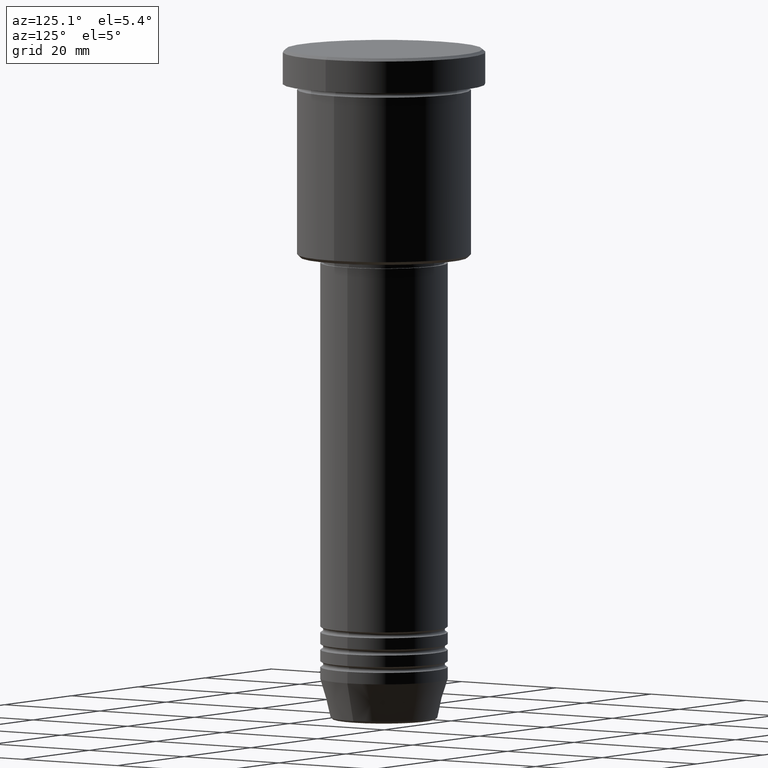
[diagram: clean part render]
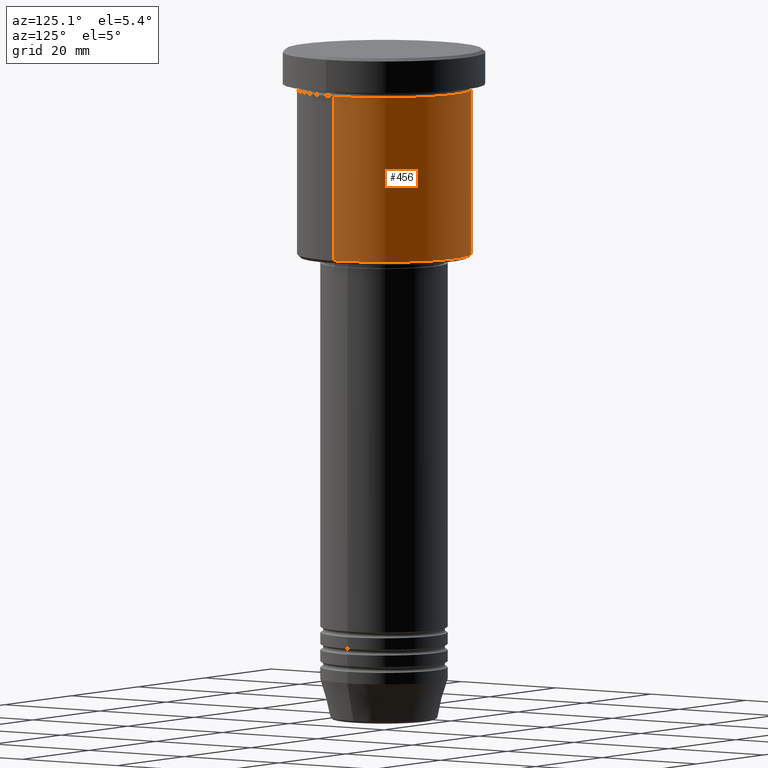
[diagram: same view with one face highlighted and labeled with its STEP entity id]
A machine part, auxiliary view. The second image highlights one B-rep face of the part: STEP entity #456.
In plain terms, the highlighted cylindrical surface (partial cylindrical patch) has radius 15 mm, axis along (-0, -0, 1).
Its self-contained STEP definition (entity closure, byte-faithful):
#70 = CARTESIAN_POINT ( 'NONE',  ( 15.00000000000000000, 0.000000000000000000, -35.50000000000000711 ) ) ;
#83 = LINE ( 'NONE', #926, #181 ) ;
#95 = VERTEX_POINT ( 'NONE', #234 ) ;
#109 = DIRECTION ( 'NONE',  ( -0.000000000000000000, -0.000000000000000000, 1.000000000000000000 ) ) ;
#145 = ORIENTED_EDGE ( 'NONE', *, *, #417, .T. ) ;
#167 = EDGE_CURVE ( 'NONE', #792, #1073, #524, .T. ) ;
#181 = VECTOR ( 'NONE', #732, 1000.000000000000000 ) ;
#201 = CARTESIAN_POINT ( 'NONE',  ( 0.000000000000000000, 0.000000000000000000, -35.50000000000000711 ) ) ;
#214 = DIRECTION ( 'NONE',  ( -1.000000000000000000, 0.000000000000000000, 0.000000000000000000 ) ) ;
#234 = CARTESIAN_POINT ( 'NONE',  ( -15.00000000000000000, 1.836970198721029589E-15, -35.50000000000000711 ) ) ;
#258 = EDGE_LOOP ( 'NONE', ( #649, #145, #797, #647 ) ) ;
#259 = CARTESIAN_POINT ( 'NONE',  ( -15.00000000000000000, 1.836970198721029589E-15, 0.000000000000000000 ) ) ;
#299 = CYLINDRICAL_SURFACE ( 'NONE', #842, 15.00000000000000000 ) ;
#339 = CARTESIAN_POINT ( 'NONE',  ( 15.00000000000000000, 0.000000000000000000, -6.999999999999995559 ) ) ;
#391 = FACE_OUTER_BOUND ( 'NONE', #258, .T. ) ;
#395 = EDGE_CURVE ( 'NONE', #619, #792, #83, .T. ) ;
#417 = EDGE_CURVE ( 'NONE', #95, #1073, #895, .T. ) ;
#435 = VECTOR ( 'NONE', #799, 1000.000000000000000 ) ;
#456 = ADVANCED_FACE ( 'NONE', ( #391 ), #299, .T. ) ;
#505 = EDGE_CURVE ( 'NONE', #619, #95, #727, .T. ) ;
#524 = CIRCLE ( 'NONE', #880, 15.00000000000000000 ) ;
#539 = DIRECTION ( 'NONE',  ( -0.000000000000000000, -0.000000000000000000, 1.000000000000000000 ) ) ;
#619 = VERTEX_POINT ( 'NONE', #70 ) ;
#647 = ORIENTED_EDGE ( 'NONE', *, *, #395, .F. ) ;
#649 = ORIENTED_EDGE ( 'NONE', *, *, #505, .T. ) ;
#655 = CARTESIAN_POINT ( 'NONE',  ( 0.000000000000000000, 0.000000000000000000, 0.000000000000000000 ) ) ;
#659 = DIRECTION ( 'NONE',  ( -0.000000000000000000, -0.000000000000000000, 1.000000000000000000 ) ) ;
#673 = AXIS2_PLACEMENT_3D ( 'NONE', #201, #109, #214 ) ;
#727 = CIRCLE ( 'NONE', #673, 15.00000000000000000 ) ;
#732 = DIRECTION ( 'NONE',  ( -0.000000000000000000, -0.000000000000000000, 1.000000000000000000 ) ) ;
#792 = VERTEX_POINT ( 'NONE', #339 ) ;
#797 = ORIENTED_EDGE ( 'NONE', *, *, #167, .F. ) ;
#799 = DIRECTION ( 'NONE',  ( -0.000000000000000000, -0.000000000000000000, 1.000000000000000000 ) ) ;
#842 = AXIS2_PLACEMENT_3D ( 'NONE', #655, #659, #1106 ) ;
#880 = AXIS2_PLACEMENT_3D ( 'NONE', #989, #539, #917 ) ;
#895 = LINE ( 'NONE', #259, #435 ) ;
#917 = DIRECTION ( 'NONE',  ( 1.000000000000000000, 0.000000000000000000, 0.000000000000000000 ) ) ;
#926 = CARTESIAN_POINT ( 'NONE',  ( 15.00000000000000000, 0.000000000000000000, 0.000000000000000000 ) ) ;
#930 = CARTESIAN_POINT ( 'NONE',  ( -15.00000000000000000, 1.836970198721029589E-15, -6.999999999999995559 ) ) ;
#989 = CARTESIAN_POINT ( 'NONE',  ( 0.000000000000000000, 0.000000000000000000, -6.999999999999995559 ) ) ;
#1073 = VERTEX_POINT ( 'NONE', #930 ) ;
#1106 = DIRECTION ( 'NONE',  ( 1.000000000000000000, 0.000000000000000000, 0.000000000000000000 ) ) ;